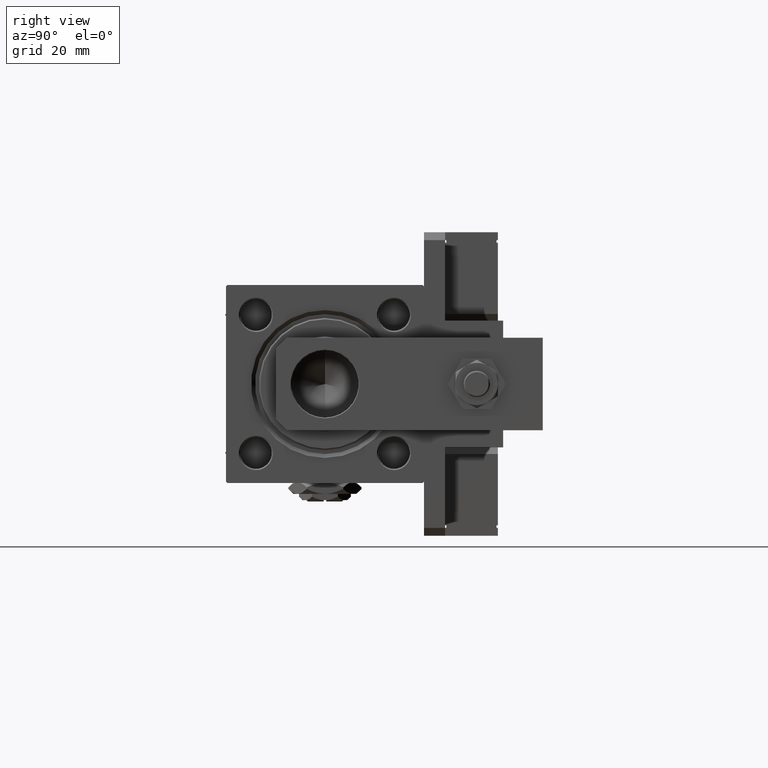
[diagram: clean part render]
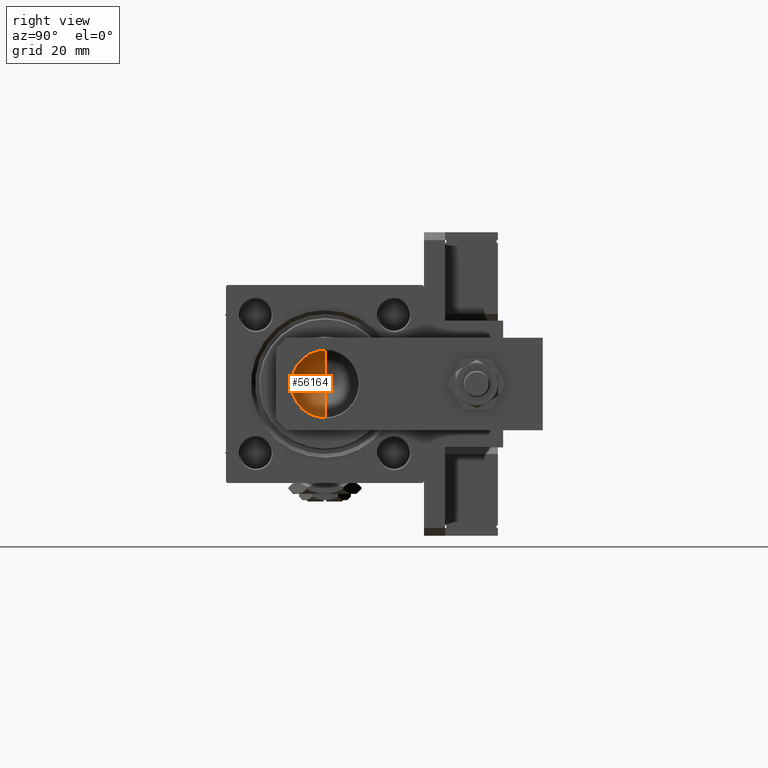
[diagram: same view with one face highlighted and labeled with its STEP entity id]
A machine part, right view. The second image highlights one B-rep face of the part: STEP entity #56164.
In plain terms, the highlighted conical surface has half-angle 59 deg.
Its self-contained STEP definition (entity closure, byte-faithful):
#1041 = ORIENTED_EDGE ( 'NONE', *, *, #12805, .T. ) ;
#8084 = CARTESIAN_POINT ( 'NONE',  ( -1.323906893019387300E-14, 0.000000000000000000, 89.33902710739862130 ) ) ;
#9044 = DIRECTION ( 'NONE',  ( -0.8571673007021117785, 1.049727191138617956E-16, 0.5150380749100550437 ) ) ;
#9816 = AXIS2_PLACEMENT_3D ( 'NONE', #19686, #41951, #24359 ) ;
#11023 = DIRECTION ( 'NONE',  ( 0.8571673007021117785, 0.000000000000000000, 0.5150380749100550437 ) ) ;
#12225 = CARTESIAN_POINT ( 'NONE',  ( 0.000000000000000000, 0.000000000000000000, 97.00000000000001421 ) ) ;
#12574 = EDGE_CURVE ( 'NONE', #43341, #15163, #54484, .T. ) ;
#12805 = EDGE_CURVE ( 'NONE', #40007, #15163, #22596, .T. ) ;
#14994 = FACE_OUTER_BOUND ( 'NONE', #20462, .T. ) ;
#15163 = VERTEX_POINT ( 'NONE', #54511 ) ;
#17775 = EDGE_CURVE ( 'NONE', #43341, #40007, #37394, .T. ) ;
#19686 = CARTESIAN_POINT ( 'NONE',  ( 0.000000000000000000, 0.000000000000000000, 97.00000000000001421 ) ) ;
#20462 = EDGE_LOOP ( 'NONE', ( #28230, #51370, #1041 ) ) ;
#22596 = CIRCLE ( 'NONE', #57263, 12.74999999999999112 ) ;
#24359 = DIRECTION ( 'NONE',  ( 1.000000000000000000, 0.000000000000000000, 0.000000000000000000 ) ) ;
#28230 = ORIENTED_EDGE ( 'NONE', *, *, #12574, .F. ) ;
#32193 = CARTESIAN_POINT ( 'NONE',  ( -12.74999999999999112, 1.561424668912874125E-15, 97.00000000000001421 ) ) ;
#36942 = CONICAL_SURFACE ( 'NONE', #9816, 12.74999999999999112, 1.029744258676653423 ) ;
#37394 = LINE ( 'NONE', #51750, #43306 ) ;
#40007 = VERTEX_POINT ( 'NONE', #48180 ) ;
#41951 = DIRECTION ( 'NONE',  ( -0.000000000000000000, -0.000000000000000000, 1.000000000000000000 ) ) ;
#43228 = VECTOR ( 'NONE', #9044, 1000.000000000000000 ) ;
#43290 = DIRECTION ( 'NONE',  ( -0.000000000000000000, -0.000000000000000000, 1.000000000000000000 ) ) ;
#43306 = VECTOR ( 'NONE', #11023, 1000.000000000000000 ) ;
#43341 = VERTEX_POINT ( 'NONE', #8084 ) ;
#47991 = DIRECTION ( 'NONE',  ( 1.000000000000000000, 0.000000000000000000, 0.000000000000000000 ) ) ;
#48180 = CARTESIAN_POINT ( 'NONE',  ( 12.74999999999999112, 0.000000000000000000, 97.00000000000001421 ) ) ;
#51370 = ORIENTED_EDGE ( 'NONE', *, *, #17775, .T. ) ;
#51750 = CARTESIAN_POINT ( 'NONE',  ( 12.74999999999999112, 0.000000000000000000, 97.00000000000001421 ) ) ;
#54484 = LINE ( 'NONE', #32193, #43228 ) ;
#54511 = CARTESIAN_POINT ( 'NONE',  ( -12.74999999999999112, 1.561424668912874125E-15, 97.00000000000001421 ) ) ;
#56164 = ADVANCED_FACE ( 'NONE', ( #14994 ), #36942, .F. ) ;
#57263 = AXIS2_PLACEMENT_3D ( 'NONE', #12225, #43290, #47991 ) ;